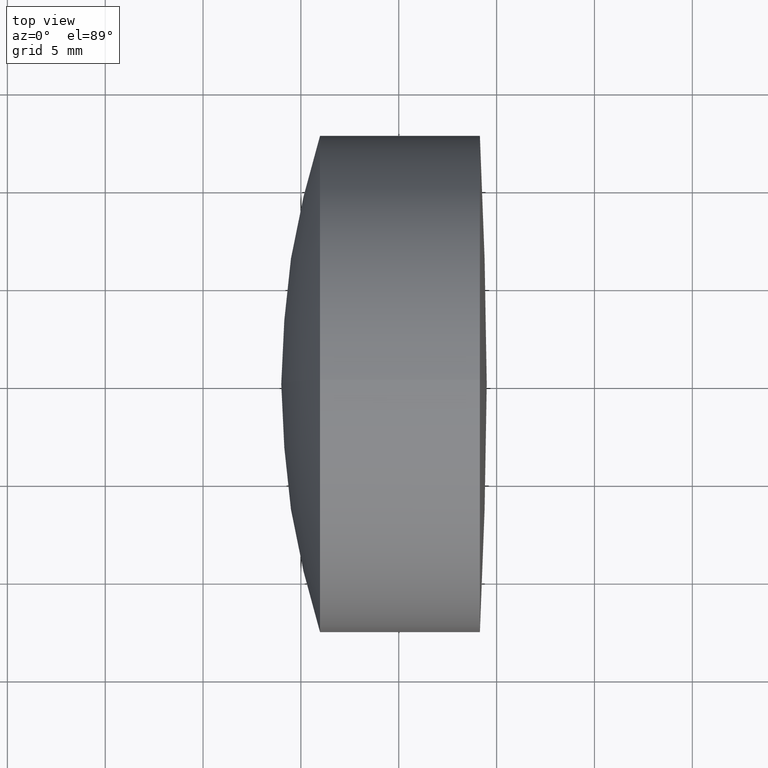
[diagram: clean part render]
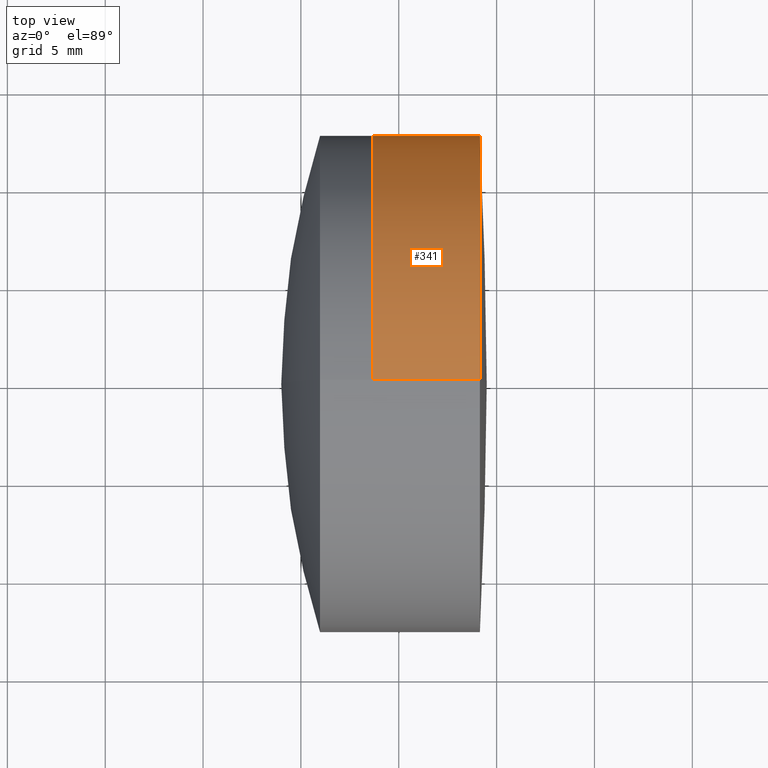
[diagram: same view with one face highlighted and labeled with its STEP entity id]
A machine part, top view. The second image highlights one B-rep face of the part: STEP entity #341.
In plain terms, the highlighted cylindrical surface (partial cylindrical patch) has radius 12.7 mm, axis along (-1, -0, -0).
Its self-contained STEP definition (entity closure, byte-faithful):
#6 = CIRCLE ( 'NONE', #199, 12.70000000000001000 ) ;
#7 = VERTEX_POINT ( 'NONE', #255 ) ;
#12 = DIRECTION ( 'NONE',  ( -1.000000000000000000, -0.0000000000000000000, -0.0000000000000000000 ) ) ;
#19 = CARTESIAN_POINT ( 'NONE',  ( -0.5519199926577972300, 1.555301434917139400E-015, -12.70000000000000800 ) ) ;
#23 = LINE ( 'NONE', #19, #237 ) ;
#37 = LINE ( 'NONE', #309, #211 ) ;
#46 = CIRCLE ( 'NONE', #147, 12.70000000000000600 ) ;
#55 = VERTEX_POINT ( 'NONE', #257 ) ;
#66 = DIRECTION ( 'NONE',  ( 0.0000000000000000000, 0.0000000000000000000, 1.000000000000000000 ) ) ;
#69 = CARTESIAN_POINT ( 'NONE',  ( 233.6683955093282600, 0.0000000000000000000, 12.70000000000000600 ) ) ;
#74 = CARTESIAN_POINT ( 'NONE',  ( 239.1460140306284900, 0.0000000000000000000, 0.0000000000000000000 ) ) ;
#86 = EDGE_LOOP ( 'NONE', ( #314, #115, #294, #92 ) ) ;
#92 = ORIENTED_EDGE ( 'NONE', *, *, #344, .F. ) ;
#115 = ORIENTED_EDGE ( 'NONE', *, *, #305, .T. ) ;
#119 = DIRECTION ( 'NONE',  ( -1.000000000000000000, -0.0000000000000000000, -0.0000000000000000000 ) ) ;
#134 = AXIS2_PLACEMENT_3D ( 'NONE', #184, #263, #217 ) ;
#139 = EDGE_CURVE ( 'NONE', #191, #219, #46, .T. ) ;
#144 = DIRECTION ( 'NONE',  ( 0.0000000000000000000, 0.0000000000000000000, 1.000000000000000000 ) ) ;
#147 = AXIS2_PLACEMENT_3D ( 'NONE', #247, #248, #66 ) ;
#150 = EDGE_CURVE ( 'NONE', #7, #55, #6, .T. ) ;
#157 = DIRECTION ( 'NONE',  ( -1.000000000000000000, -0.0000000000000000000, -0.0000000000000000000 ) ) ;
#184 = CARTESIAN_POINT ( 'NONE',  ( -0.5519199926577972300, 0.0000000000000000000, 0.0000000000000000000 ) ) ;
#191 = VERTEX_POINT ( 'NONE', #69 ) ;
#199 = AXIS2_PLACEMENT_3D ( 'NONE', #74, #12, #144 ) ;
#211 = VECTOR ( 'NONE', #157, 1000.000000000000000 ) ;
#217 = DIRECTION ( 'NONE',  ( 0.0000000000000000000, 0.0000000000000000000, 1.000000000000000000 ) ) ;
#219 = VERTEX_POINT ( 'NONE', #221 ) ;
#221 = CARTESIAN_POINT ( 'NONE',  ( 233.6683955093282600, 1.555301434917139400E-015, -12.70000000000001000 ) ) ;
#222 = CYLINDRICAL_SURFACE ( 'NONE', #134, 12.70000000000000800 ) ;
#237 = VECTOR ( 'NONE', #119, 1000.000000000000000 ) ;
#247 = CARTESIAN_POINT ( 'NONE',  ( 233.6683955093282600, 0.0000000000000000000, 0.0000000000000000000 ) ) ;
#248 = DIRECTION ( 'NONE',  ( -1.000000000000000000, -0.0000000000000000000, -0.0000000000000000000 ) ) ;
#255 = CARTESIAN_POINT ( 'NONE',  ( 239.1460140306284900, 0.0000000000000000000, 12.70000000000001000 ) ) ;
#257 = CARTESIAN_POINT ( 'NONE',  ( 239.1460140306284900, 1.555301434917139800E-015, -12.70000000000001200 ) ) ;
#261 = FACE_OUTER_BOUND ( 'NONE', #86, .T. ) ;
#263 = DIRECTION ( 'NONE',  ( -1.000000000000000000, -0.0000000000000000000, -0.0000000000000000000 ) ) ;
#294 = ORIENTED_EDGE ( 'NONE', *, *, #139, .F. ) ;
#305 = EDGE_CURVE ( 'NONE', #55, #219, #23, .T. ) ;
#309 = CARTESIAN_POINT ( 'NONE',  ( -0.5519199926577972300, 0.0000000000000000000, 12.70000000000000800 ) ) ;
#314 = ORIENTED_EDGE ( 'NONE', *, *, #150, .T. ) ;
#341 = ADVANCED_FACE ( 'NONE', ( #261 ), #222, .T. ) ;
#344 = EDGE_CURVE ( 'NONE', #7, #191, #37, .T. ) ;